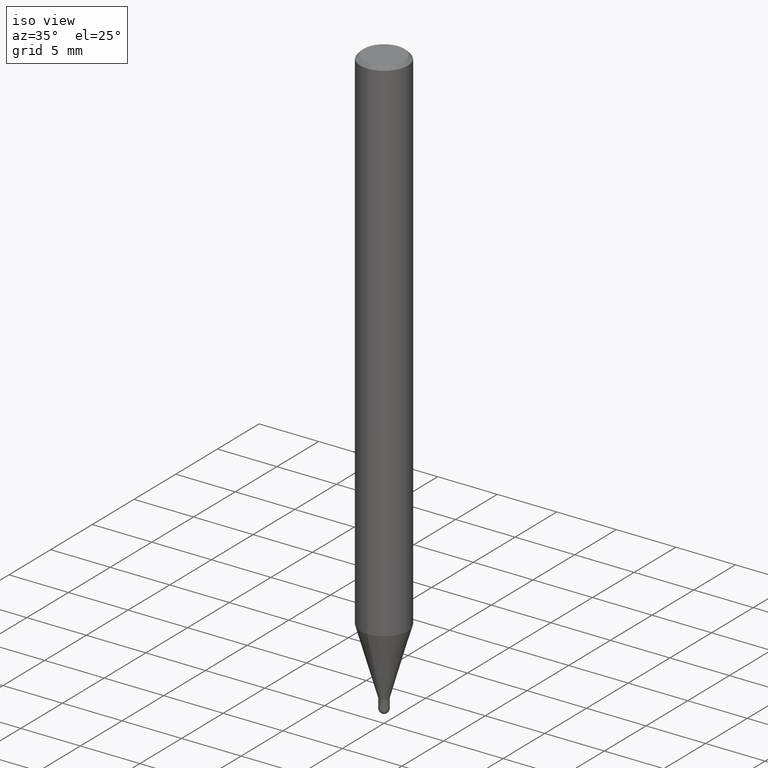
[diagram: clean part render]
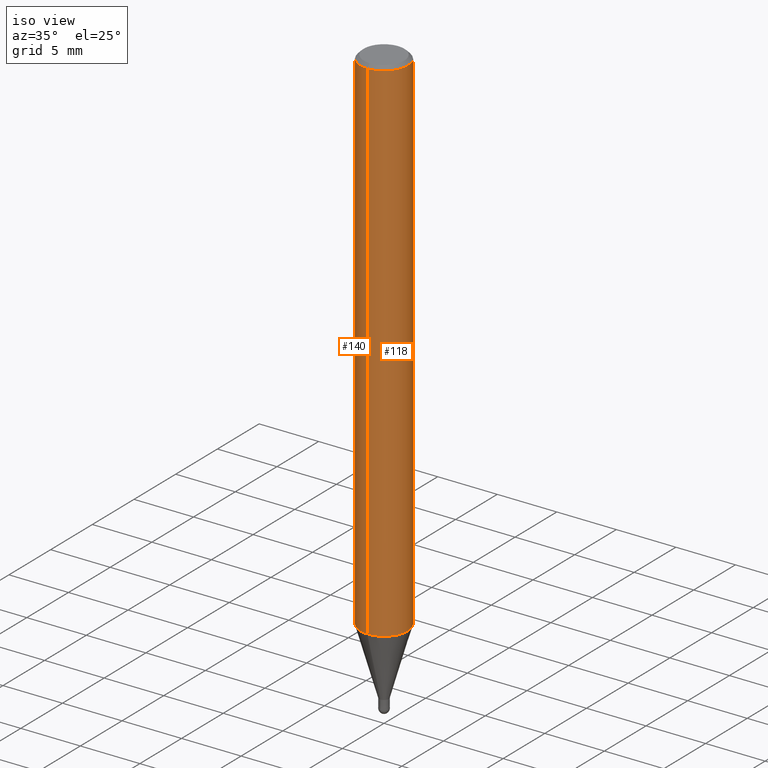
[diagram: same view with one multi-face feature highlighted, each face labeled with its STEP entity id]
A machine part, iso view. The highlighted faces form ONE feature: a constant-radius fillet chain: 2 tangent blend faces with common blend radius 2 mm. The faces share edges in the B-rep.
Their STEP definitions:
[1] entity #118 (Cylinder):
#114=EDGE_CURVE('',#156,#126,#246,.T.);
#118=ADVANCED_FACE('',(#250),#251,.T.);
#120=VERTEX_POINT('',#253);
#126=VERTEX_POINT('',#259);
#150=VERTEX_POINT('',#287);
#156=VERTEX_POINT('',#293);
#158=EDGE_CURVE('',#150,#156,#295,.T.);
#168=EDGE_CURVE('',#126,#120,#306,.T.);
#188=EDGE_CURVE('',#150,#120,#328,.T.);
#246=CIRCLE('',#384,2.0);
#250=FACE_OUTER_BOUND('',#387,.T.);
#251=CYLINDRICAL_SURFACE('',#388,2.0);
#253=CARTESIAN_POINT('',(2.44921270764475E-016,-2.0,-0.299999999999997));
#259=CARTESIAN_POINT('',(2.44921270764475E-016,-2.0,-43.22));
#287=CARTESIAN_POINT('',(0.0,2.0,-0.299999999999997));
#293=CARTESIAN_POINT('',(0.0,2.0,-43.22));
#295=LINE('',#445,#446);
#306=LINE('',#462,#463);
#328=CIRCLE('',#489,2.0);
#384=AXIS2_PLACEMENT_3D('',#555,#556,#557);
#387=EDGE_LOOP('',(#560,#561,#562,#563));
#388=AXIS2_PLACEMENT_3D('',#564,#565,#566);
#445=CARTESIAN_POINT('',(-2.44921270764475E-016,2.0,-21.76));
#446=VECTOR('',#618,1.0);
#462=CARTESIAN_POINT('',(2.44921270764475E-016,-2.0,-21.76));
#463=VECTOR('',#634,1.0);
#489=AXIS2_PLACEMENT_3D('',#647,#648,#649);
#555=CARTESIAN_POINT('',(0.0,0.0,-43.22));
#556=DIRECTION('',(0.0,0.0,-1.0));
#557=DIRECTION('',(0.0,1.0,0.0));
#560=ORIENTED_EDGE('',*,*,#158,.F.);
#561=ORIENTED_EDGE('',*,*,#188,.T.);
#562=ORIENTED_EDGE('',*,*,#168,.F.);
#563=ORIENTED_EDGE('',*,*,#114,.F.);
#564=CARTESIAN_POINT('',(0.0,0.0,-21.76));
#565=DIRECTION('',(-0.0,-0.0,1.0));
#566=DIRECTION('',(0.0,1.0,0.0));
#618=DIRECTION('',(0.0,0.0,-1.0));
#634=DIRECTION('',(-0.0,-0.0,1.0));
#647=CARTESIAN_POINT('',(0.0,0.0,-0.299999999999997));
#648=DIRECTION('',(0.0,0.0,-1.0));
#649=DIRECTION('',(0.0,1.0,0.0));
[2] entity #140 (Cylinder):
#102=EDGE_CURVE('',#120,#150,#230,.T.);
#120=VERTEX_POINT('',#253);
#126=VERTEX_POINT('',#259);
#140=ADVANCED_FACE('',(#275),#276,.T.);
#150=VERTEX_POINT('',#287);
#152=EDGE_CURVE('',#126,#156,#289,.T.);
#156=VERTEX_POINT('',#293);
#158=EDGE_CURVE('',#150,#156,#295,.T.);
#168=EDGE_CURVE('',#126,#120,#306,.T.);
#230=CIRCLE('',#365,2.0);
#253=CARTESIAN_POINT('',(2.44921270764475E-016,-2.0,-0.299999999999997));
#259=CARTESIAN_POINT('',(2.44921270764475E-016,-2.0,-43.22));
#275=FACE_OUTER_BOUND('',#418,.T.);
#276=CYLINDRICAL_SURFACE('',#419,2.0);
#287=CARTESIAN_POINT('',(0.0,2.0,-0.299999999999997));
#289=CIRCLE('',#438,2.0);
#293=CARTESIAN_POINT('',(0.0,2.0,-43.22));
#295=LINE('',#445,#446);
#306=LINE('',#462,#463);
#365=AXIS2_PLACEMENT_3D('',#523,#524,#525);
#418=EDGE_LOOP('',(#595,#596,#597,#598));
#419=AXIS2_PLACEMENT_3D('',#599,#600,#601);
#438=AXIS2_PLACEMENT_3D('',#615,#616,#617);
#445=CARTESIAN_POINT('',(-2.44921270764475E-016,2.0,-21.76));
#446=VECTOR('',#618,1.0);
#462=CARTESIAN_POINT('',(2.44921270764475E-016,-2.0,-21.76));
#463=VECTOR('',#634,1.0);
#523=CARTESIAN_POINT('',(0.0,0.0,-0.299999999999997));
#524=DIRECTION('',(0.0,0.0,-1.0));
#525=DIRECTION('',(0.0,1.0,0.0));
#595=ORIENTED_EDGE('',*,*,#158,.T.);
#596=ORIENTED_EDGE('',*,*,#152,.F.);
#597=ORIENTED_EDGE('',*,*,#168,.T.);
#598=ORIENTED_EDGE('',*,*,#102,.T.);
#599=CARTESIAN_POINT('',(0.0,0.0,-21.76));
#600=DIRECTION('',(-0.0,-0.0,1.0));
#601=DIRECTION('',(0.0,1.0,0.0));
#615=CARTESIAN_POINT('',(0.0,0.0,-43.22));
#616=DIRECTION('',(0.0,0.0,-1.0));
#617=DIRECTION('',(0.0,1.0,0.0));
#618=DIRECTION('',(0.0,0.0,-1.0));
#634=DIRECTION('',(-0.0,-0.0,1.0));